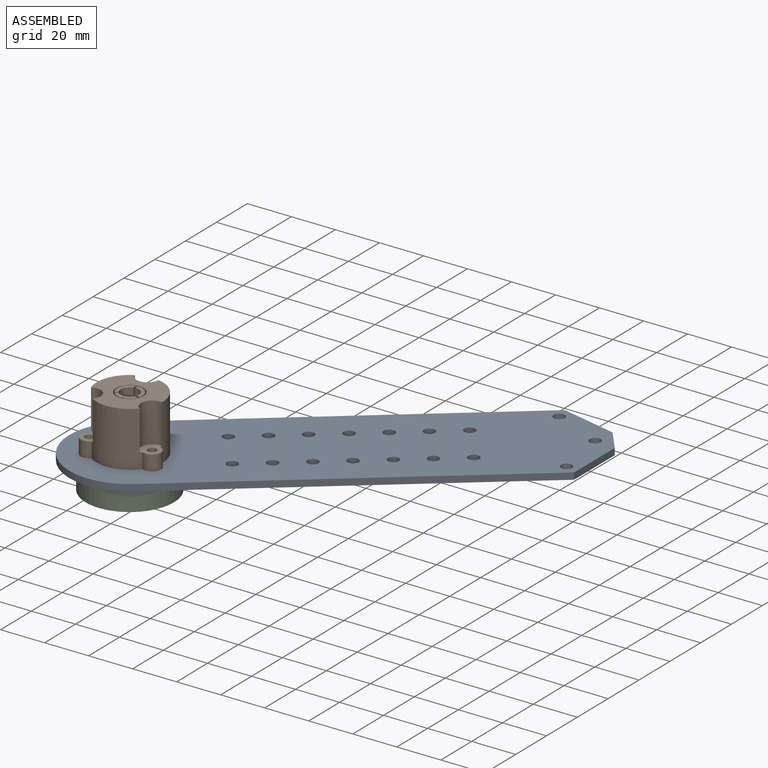
[diagram: assembled view]
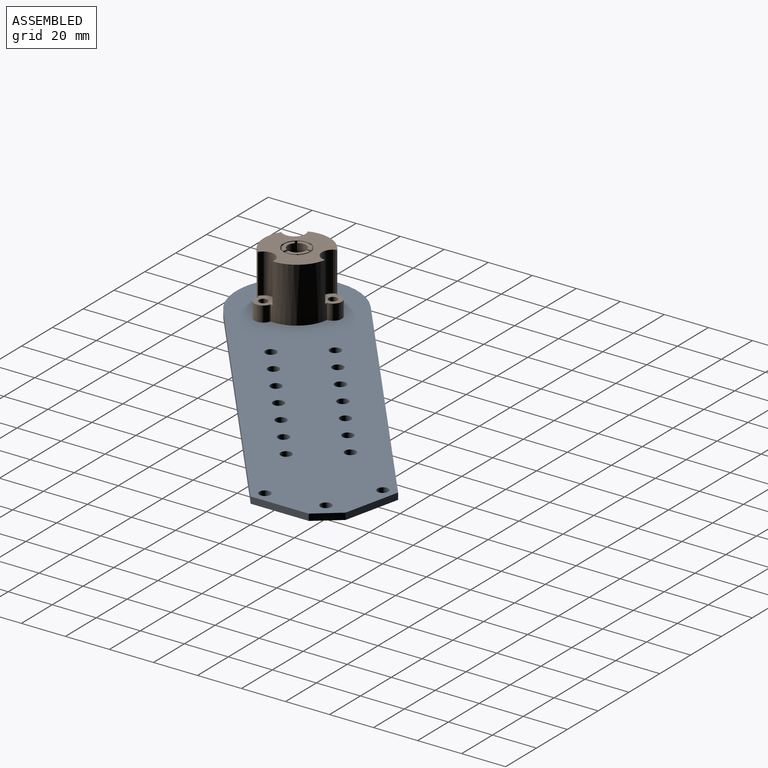
[diagram: assembled view, second angle]
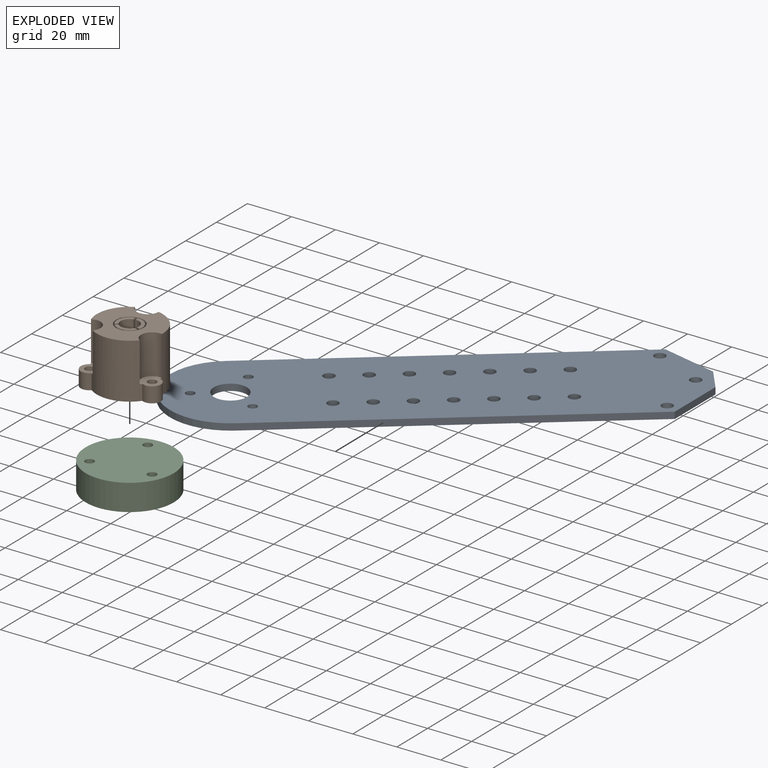
[diagram: exploded view]
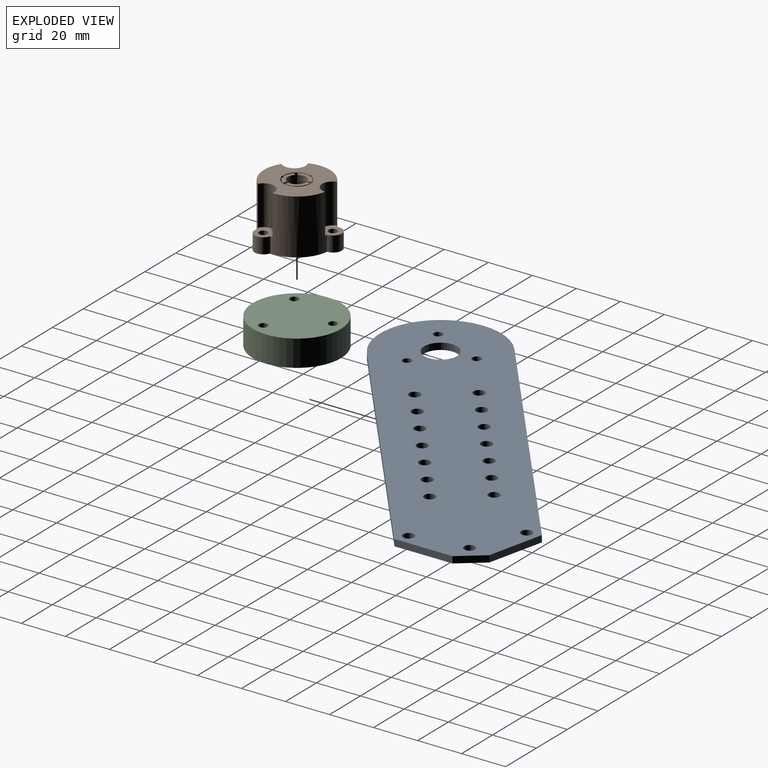
[diagram: exploded view, second angle]
ASSEMBLY  parts=3 mates=4
PART A: 29 faces, bbox 55x207.9x3 mm
  f0: plane 163.97x3mm, normal (1,0,0), area 491.9mm2, adj f1,f11,f27,f28
  f1: plane 20.64x16.46mm, normal (0.62,0.78,0), area 79.2mm2, adj f0,f2,f27,f28
  f2: plane 13.72x3mm, normal (0,1,0), area 41.2mm2, adj f1,f3,f27,f28
  f3: plane 20.64x16.46mm, normal (-0.62,0.78,0), area 79.2mm2, adj f2,f4,f27,f28
  f4: plane 163.97x3mm, normal (-1,0,0), area 491.9mm2, adj f3,f11,f27,f28
  f5: cylinder r=2mm len=4mm, axis (0,0,-1), area 37.7mm2, adj f27,f28
  f6: cylinder r=2mm len=4mm, axis (0,0,-1), area 37.7mm2, adj f27,f28
  f7: cylinder r=2mm len=4mm, axis (0,0,-1), area 37.7mm2, adj f27,f28
  f8: cylinder r=2.5mm len=5mm, axis (0,0,-1), area 47.1mm2, adj f27,f28
  f9: cylinder r=2.5mm len=5mm, axis (0,0,-1), area 47.1mm2, adj f27,f28
  f10: cylinder r=2.5mm len=5mm, axis (0,0,-1), area 47.1mm2, adj f27,f28
  f11: cylinder r=27.5mm len=55mm, axis (0,0,-1), area 259.2mm2, adj f0,f4,f27,f28
  f12: cylinder r=2.5mm len=5mm, axis (0,0,-1), area 47.1mm2, adj f27,f28
  f13: cylinder r=2.5mm len=5mm, axis (0,0,-1), area 47.1mm2, adj f27,f28
  f14: cylinder r=2.5mm len=5mm, axis (0,0,-1), area 47.1mm2, adj f27,f28
  f15: cylinder r=2.5mm len=5mm, axis (0,0,-1), area 47.1mm2, adj f27,f28
  f16: cylinder r=2.5mm len=5mm, axis (0,0,-1), area 47.1mm2, adj f27,f28
  f17: cylinder r=2.5mm len=5mm, axis (0,0,-1), area 47.1mm2, adj f27,f28
  f18: cylinder r=2.5mm len=5mm, axis (0,0,-1), area 47.1mm2, adj f27,f28
  f19: cylinder r=2.5mm len=5mm, axis (0,0,-1), area 47.1mm2, adj f27,f28
  f20: cylinder r=2.5mm len=5mm, axis (0,0,-1), area 47.1mm2, adj f27,f28
  f21: cylinder r=2.5mm len=5mm, axis (0,0,-1), area 47.1mm2, adj f27,f28
  f22: cylinder r=2.5mm len=5mm, axis (0,0,-1), area 47.1mm2, adj f27,f28
  f23: cylinder r=2.5mm len=5mm, axis (0,0,-1), area 47.1mm2, adj f27,f28
  f24: cylinder r=2.5mm len=5mm, axis (0,0,-1), area 47.1mm2, adj f27,f28
  f25: cylinder r=2.5mm len=5mm, axis (0,0,-1), area 47.1mm2, adj f27,f28
  f26: cylinder r=7.5mm len=15mm, axis (0,0,-1), area 141.4mm2, adj f27,f28
  f27: plane 207.93x55mm, normal (0,0,1), area 10223.5mm2, adj f0,f1,f2,f3,f4,f5,f6,f7
  f28: plane 207.93x55mm, normal (0,0,-1), area 10223.5mm2, adj f0,f1,f2,f3,f4,f5,f6,f7
PART B: 51 faces, bbox 34x34x25 mm
  f0: cylinder r=5.75mm len=12mm, axis (0,0,1), area 61.2mm2, adj f7,f34,f40,f45
  f1: cylinder r=5.75mm len=12mm, axis (0,0,1), area 61.2mm2, adj f8,f36,f40,f42
  f2: cylinder r=5.75mm len=12mm, axis (0,0,1), area 61.2mm2, adj f6,f38,f40,f48
  f3: cylinder r=4.15mm len=15mm, axis (0,0,-1), area 115.3mm2, adj f8,f41,f42,f50
  f4: cylinder r=4.15mm len=15mm, axis (0,0,-1), area 115.3mm2, adj f6,f41,f47,f48
  f5: cylinder r=4.15mm len=15mm, axis (0,0,-1), area 115.3mm2, adj f7,f41,f44,f45
  f6: plane 9.42x3.24mm, normal (0,0,1), area 14.8mm2, adj f2,f4,f33,f38,f47,f48
  f7: plane 8.16x5.25mm, normal (0,0,1), area 14.8mm2, adj f0,f5,f34,f35,f44,f45
  f8: plane 8.16x5.25mm, normal (0,0,1), area 14.8mm2, adj f1,f3,f36,f37,f42,f50
  f9: cylinder r=4mm len=8mm, axis (0,0,-1), area 95.5mm2, adj f10,f17,f19,f21
  f10: cylinder r=15mm len=25mm, axis (0,0,-1), area 548.4mm2, adj f9,f11,f18,f19,f20,f21,f22,f23
  f11: cylinder r=4mm len=7.7mm, axis (0,0,-1), area 95.5mm2, adj f10,f12,f19,f23
  f12: cylinder r=15mm len=25mm, axis (0,0,-1), area 548.4mm2, adj f11,f13,f18,f19,f22,f23,f24,f25
  f13: cylinder r=4mm len=7.7mm, axis (0,0,-1), area 95.5mm2, adj f12,f17,f19,f25
  f14: cylinder r=2mm len=7mm, axis (0,0,-1), area 88mm2, adj f19,f25
  f15: cylinder r=2mm len=7mm, axis (0,0,-1), area 88mm2, adj f19,f23
  f16: cylinder r=2mm len=7mm, axis (0,0,-1), area 88mm2, adj f19,f21
  f17: cylinder r=15mm len=25mm, axis (0,0,-1), area 548.4mm2, adj f9,f13,f18,f19,f20,f21,f24,f25
  f18: plane 30x29.17mm, normal (0,0,1), area 474.2mm2, adj f10,f12,f17,f20,f22,f24,f26,f27
  f19: plane 34x33.98mm, normal (0,0,-1), area 748.8mm2, adj f9,f10,f11,f12,f13,f14,f15,f16
  f20: cylinder r=5mm len=18mm, axis (0,0,1), area 252.6mm2, adj f10,f17,f18,f21
  f21: plane 9.86x9mm, normal (0,0,1), area 50.5mm2, adj f9,f10,f16,f17,f20
  f22: cylinder r=5mm len=18mm, axis (0,0,1), area 252.6mm2, adj f10,f12,f18,f23
  f23: plane 9x9mm, normal (0,0,1), area 50.5mm2, adj f10,f11,f12,f15,f22
  f24: cylinder r=5mm len=18mm, axis (0,0,1), area 252.6mm2, adj f12,f17,f18,f25
  f25: plane 9x9mm, normal (0,0,1), area 50.5mm2, adj f12,f13,f14,f17,f24
  f26: cylinder r=0.5mm len=12mm, axis (0,0,1), area 13mm2, adj f18,f27,f39,f40
  f27: cylinder r=6.25mm len=12mm, axis (0,0,1), area 146.5mm2, adj f18,f26,f28,f40
  f28: cylinder r=0.5mm len=12mm, axis (0,0,1), area 13mm2, adj f18,f27,f29,f40
  f29: cylinder r=6.25mm len=12mm, axis (0,0,1), area 146.5mm2, adj f18,f28,f30,f40
  f30: cylinder r=0.5mm len=12mm, axis (0,0,1), area 13mm2, adj f18,f29,f31,f40
  f31: cylinder r=6.25mm len=12mm, axis (0,0,1), area 67.2mm2, adj f18,f30,f32,f40
  f32: plane 12x1mm, normal (0,1,0), area 12mm2, adj f18,f31,f39,f40
  f33: cylinder r=5.75mm len=12mm, axis (0,0,1), area 61.2mm2, adj f6,f38,f40,f47
  f34: cylinder r=0.5mm len=12mm, axis (0,0,1), area 12.1mm2, adj f0,f7,f35,f40
  f35: cylinder r=5.75mm len=12mm, axis (0,0,1), area 61.2mm2, adj f7,f34,f40,f44
  f36: cylinder r=0.5mm len=12mm, axis (0,0,1), area 12.1mm2, adj f1,f8,f37,f40
  f37: cylinder r=5.75mm len=12mm, axis (0,0,1), area 61.2mm2, adj f8,f36,f40,f50
  f38: cylinder r=0.5mm len=12mm, axis (0,0,1), area 12.1mm2, adj f2,f6,f33,f40
  f39: cylinder r=6.25mm len=12mm, axis (0,0,1), area 67.2mm2, adj f18,f26,f32,f40
  f40: plane 12.73x12.5mm, normal (0,0,1), area 19.8mm2, adj f0,f1,f2,f26,f27,f28,f29,f30
  f41: plane 10.42x9.9mm, normal (0,0,1), area 58.9mm2, adj f3,f4,f5,f42,f43,f44,f45,f46
  f42: plane 15x1.61mm, normal (1,0,0), area 24.1mm2, adj f1,f3,f8,f41,f43
  f43: cylinder r=5.75mm len=3mm, axis (0,0,1), area 3mm2, adj f40,f41,f42,f44
  f44: plane 15x1.61mm, normal (-1,0,0), area 24.1mm2, adj f5,f7,f35,f41,f43
  f45: plane 15x1.39mm, normal (-0.5,0.87,0), area 24.1mm2, adj f0,f5,f7,f41,f46
  f46: cylinder r=5.75mm len=3mm, axis (0,0,1), area 3mm2, adj f40,f41,f45,f47
  f47: plane 15x1.39mm, normal (0.5,-0.87,0), area 24.1mm2, adj f4,f6,f33,f41,f46
  f48: plane 15x1.39mm, normal (-0.5,-0.87,0), area 24.1mm2, adj f2,f4,f6,f41,f49
  f49: cylinder r=5.75mm len=3mm, axis (0,0,1), area 3mm2, adj f40,f41,f48,f50
  f50: plane 15x1.39mm, normal (0.5,0.87,0), area 24.1mm2, adj f3,f8,f37,f41,f49
PART C: 12 faces, bbox 40x40x12 mm
  f0: cylinder r=2mm len=9mm, axis (0,0,-1), area 113.1mm2, adj f4,f7
  f1: cylinder r=2mm len=9mm, axis (0,0,-1), area 113.1mm2, adj f4,f11
  f2: cylinder r=20mm len=40mm, axis (0,0,-1), area 1508mm2, adj f4,f5
  f3: cylinder r=2mm len=9mm, axis (0,0,-1), area 113.1mm2, adj f4,f9
  f4: plane 40x40mm, normal (0,0,1), area 1218.9mm2, adj f0,f1,f2,f3
  f5: plane 40x40mm, normal (0,0,-1), area 1171.8mm2, adj f2,f6,f8,f10
  f6: cylinder r=3mm len=6mm, axis (0,0,-1), area 56.5mm2, adj f5,f7
  f7: plane 6x6mm, normal (0,0,-1), area 15.7mm2, adj f0,f6
  f8: cylinder r=3mm len=6mm, axis (0,0,-1), area 56.5mm2, adj f5,f9
  f9: plane 6x6mm, normal (0,0,-1), area 15.7mm2, adj f3,f8
  f10: cylinder r=3mm len=6mm, axis (0,0,-1), area 56.5mm2, adj f5,f11
  f11: plane 6x6mm, normal (0,0,-1), area 15.7mm2, adj f1,f10
PLACE A rot(axis=(0,0,-1),51.4deg) t=(0,0,6)mm
PLACE B rot(axis=(0,0,-1),51.4deg) t=(0,0,6)mm
PLACE C rot(axis=(0,0,-1),51.4deg) t=(0,0,-6)mm
MATE revolute B.f9 <-> A.f5  axis (0,0,-1) through (-184.57,-147.19,9)mm
MATE revolute A.f7 <-> C.f3  axis (0,0,-1) through (-175.08,-123,6)mm
MATE revolute C.f0 <-> A.f6  axis (0,0,1) through (-158.88,-143.32,6)mm
MATE revolute A.f7 <-> B.f13  axis (0,0,1) through (-175.08,-123,9)mm
